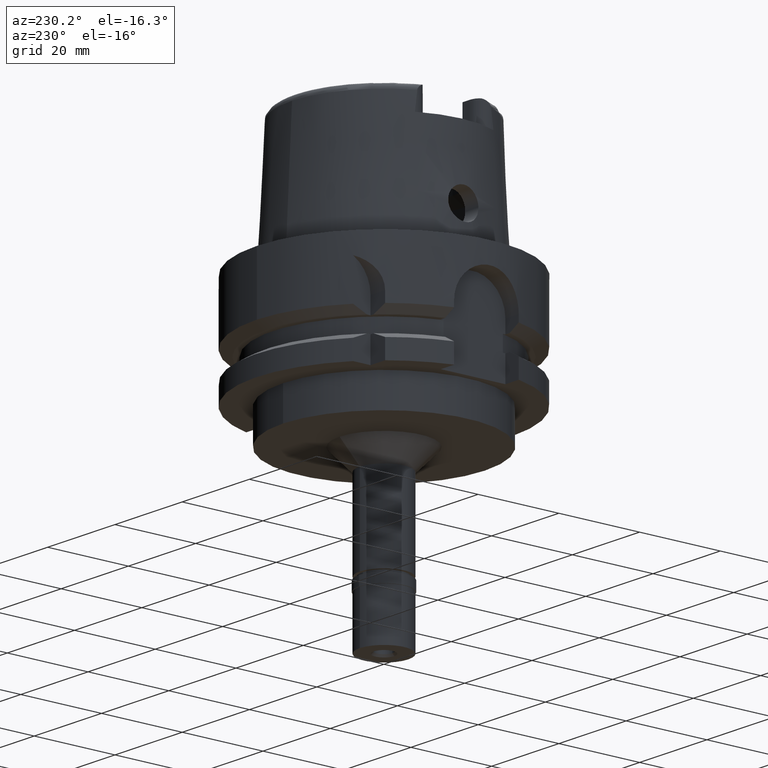
[diagram: clean part render]
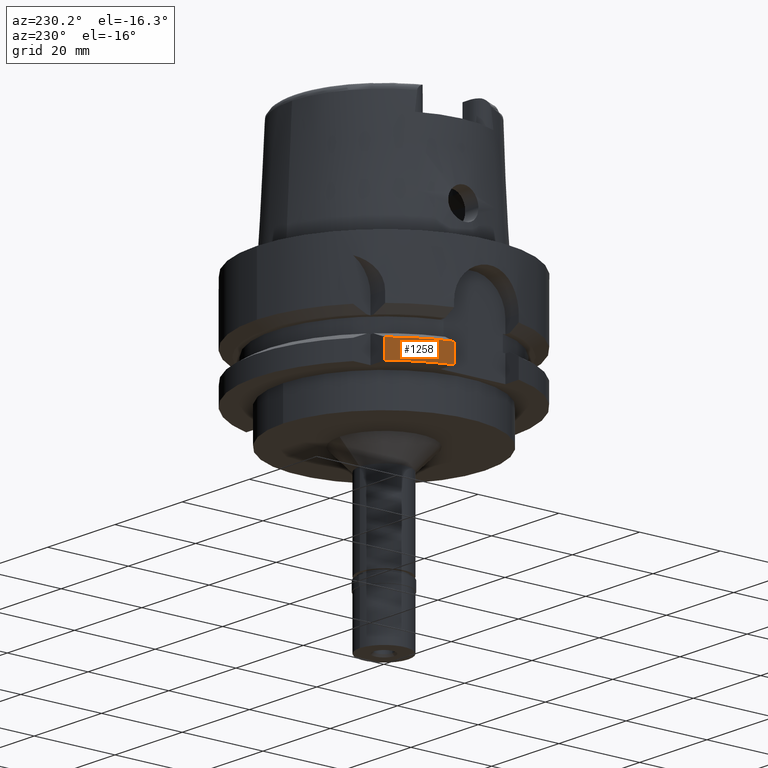
[diagram: same view with one face highlighted and labeled with its STEP entity id]
A machine part, auxiliary view. The second image highlights one B-rep face of the part: STEP entity #1258.
In plain terms, the highlighted cylindrical surface (partial cylindrical patch) has radius 31.5 mm, axis along (0, 0, 1).
Its self-contained STEP definition (entity closure, byte-faithful):
#83 = CIRCLE ( 'NONE', #3221, 31.50000000000000711 ) ;
#206 = LINE ( 'NONE', #1913, #5206 ) ;
#441 = VERTEX_POINT ( 'NONE', #894 ) ;
#511 = CARTESIAN_POINT ( 'NONE',  ( 0.0000000000000000000, 0.0000000000000000000, -26.00000000000000000 ) ) ;
#718 = DIRECTION ( 'NONE',  ( 0.0000000000000000000, 1.000000000000000000, 0.0000000000000000000 ) ) ;
#894 = CARTESIAN_POINT ( 'NONE',  ( -24.33618953209000324, 19.99999697646000030, -21.37748824071000087 ) ) ;
#895 = EDGE_CURVE ( 'NONE', #4629, #441, #206, .T. ) ;
#957 = EDGE_CURVE ( 'NONE', #4535, #2728, #1210, .T. ) ;
#969 = ORIENTED_EDGE ( 'NONE', *, *, #895, .F. ) ;
#1136 = CARTESIAN_POINT ( 'NONE',  ( -30.46719547316000032, 8.000000000000000000, -26.00000000000000000 ) ) ;
#1210 = LINE ( 'NONE', #1740, #2146 ) ;
#1258 = ADVANCED_FACE ( 'NONE', ( #2357 ), #3714, .T. ) ;
#1702 = AXIS2_PLACEMENT_3D ( 'NONE', #4925, #2812, #718 ) ;
#1740 = CARTESIAN_POINT ( 'NONE',  ( -30.46719550067999904, 7.999999895216999946, -21.37749812352999967 ) ) ;
#1913 = CARTESIAN_POINT ( 'NONE',  ( -24.33618704727999926, 20.00000000000000000, -26.00000000000000000 ) ) ;
#2044 = DIRECTION ( 'NONE',  ( 0.0000000000000000000, 0.0000000000000000000, -1.000000000000000000 ) ) ;
#2146 = VECTOR ( 'NONE', #4204, 1000.000000000000114 ) ;
#2287 = DIRECTION ( 'NONE',  ( -0.7725773665802099233, 0.6349206349206079070, 0.0000000000000000000 ) ) ;
#2357 = FACE_OUTER_BOUND ( 'NONE', #2380, .T. ) ;
#2380 = EDGE_LOOP ( 'NONE', ( #3455, #5370, #2637, #969 ) ) ;
#2399 = EDGE_CURVE ( 'NONE', #4535, #441, #5466, .T. ) ;
#2596 = AXIS2_PLACEMENT_3D ( 'NONE', #4194, #2044, #3763 ) ;
#2635 = EDGE_CURVE ( 'NONE', #4629, #2728, #83, .T. ) ;
#2637 = ORIENTED_EDGE ( 'NONE', *, *, #2399, .T. ) ;
#2681 = CARTESIAN_POINT ( 'NONE',  ( -30.46719547317000121, 8.000000000001000089, -21.37749907476000288 ) ) ;
#2720 = DIRECTION ( 'NONE',  ( 0.0000000000000000000, 0.0000000000000000000, 1.000000000000000000 ) ) ;
#2728 = VERTEX_POINT ( 'NONE', #1136 ) ;
#2812 = DIRECTION ( 'NONE',  ( 0.0000000000000000000, 0.0000000000000000000, 1.000000000000000000 ) ) ;
#3221 = AXIS2_PLACEMENT_3D ( 'NONE', #511, #2720, #2287 ) ;
#3455 = ORIENTED_EDGE ( 'NONE', *, *, #2635, .T. ) ;
#3642 = DIRECTION ( 'NONE',  ( -5.375450050143217706E-07, -6.540899232592266923E-07, 0.9999999999996415090 ) ) ;
#3714 = CYLINDRICAL_SURFACE ( 'NONE', #1702, 31.50000000000000000 ) ;
#3763 = DIRECTION ( 'NONE',  ( -0.9672125547036138915, 0.2539682539683034701, 0.0000000000000000000 ) ) ;
#4067 = CARTESIAN_POINT ( 'NONE',  ( -24.33618704727999926, 20.00000000000000000, -26.00000000000000000 ) ) ;
#4194 = CARTESIAN_POINT ( 'NONE',  ( 0.0000000000000000000, 0.0000000000000000000, -21.37749907476000288 ) ) ;
#4204 = DIRECTION ( 'NONE',  ( 5.952204474083997106E-09, 2.266806466995999042E-08, -0.9999999999999996669 ) ) ;
#4535 = VERTEX_POINT ( 'NONE', #2681 ) ;
#4629 = VERTEX_POINT ( 'NONE', #4067 ) ;
#4925 = CARTESIAN_POINT ( 'NONE',  ( 0.0000000000000000000, 0.0000000000000000000, -76.14999999999999147 ) ) ;
#5206 = VECTOR ( 'NONE', #3642, 1000.000000000000114 ) ;
#5370 = ORIENTED_EDGE ( 'NONE', *, *, #957, .F. ) ;
#5466 = CIRCLE ( 'NONE', #2596, 31.50000000000000000 ) ;